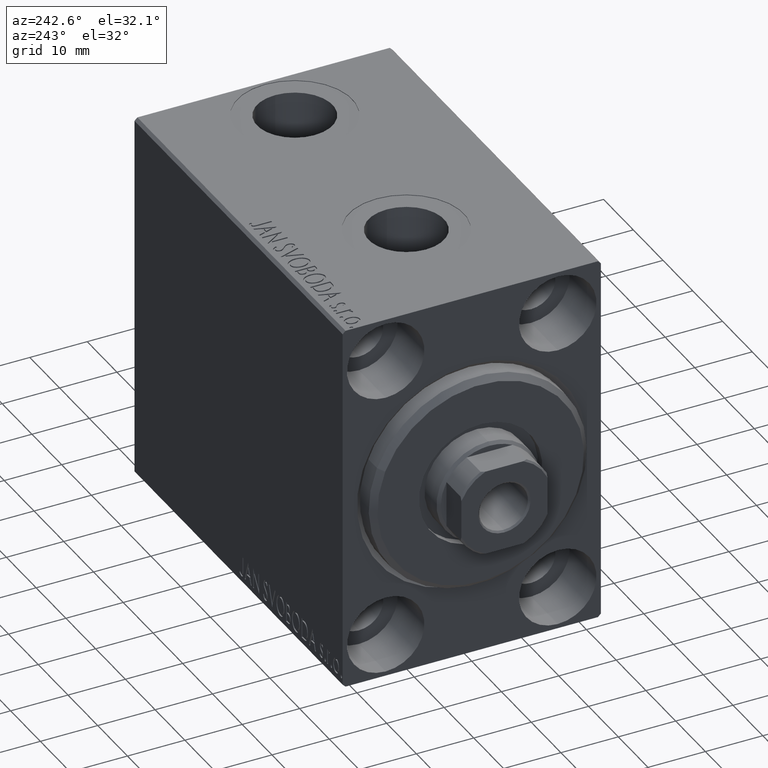
[diagram: clean part render]
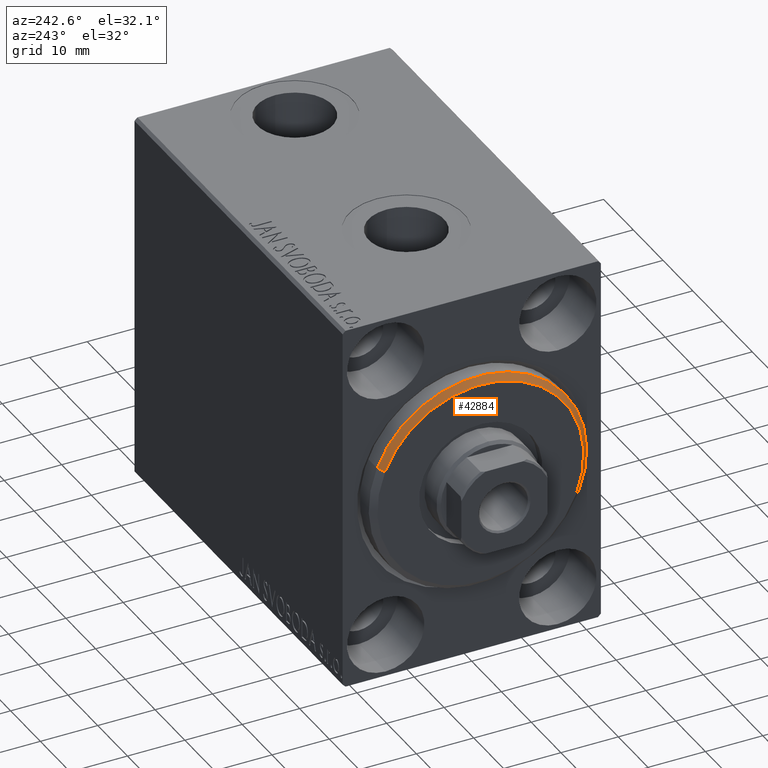
[diagram: same view with one face highlighted and labeled with its STEP entity id]
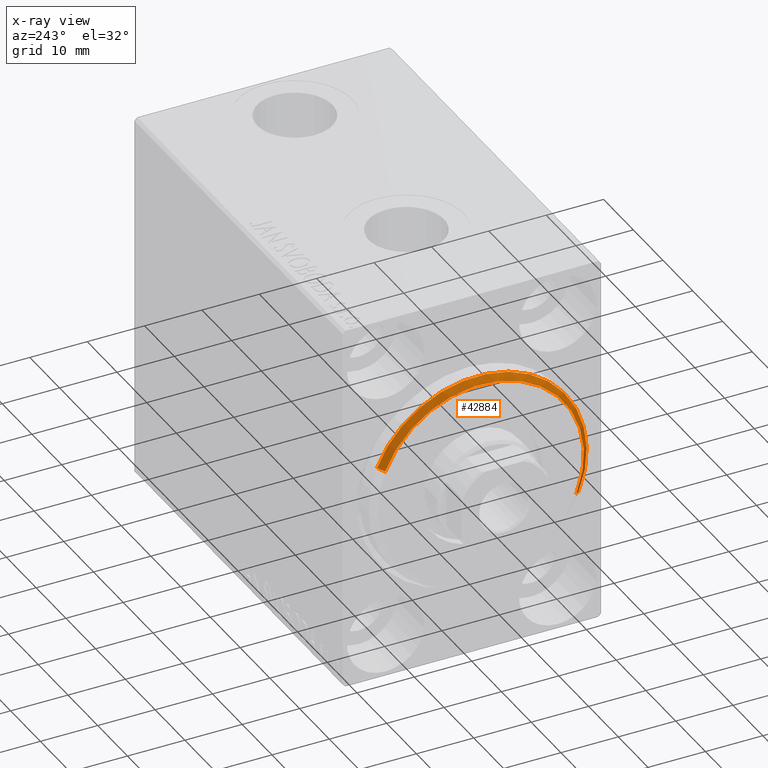
[diagram: x-ray of the same camera — body ghosted, the highlighted face saturated]
A machine part, auxiliary view. The second image highlights one B-rep face of the part: STEP entity #42884.
The next image is the same camera in x-ray: the body ghosted, the highlighted face saturated — about 0% of this face is hidden behind the body in this view.
In plain terms, the highlighted conical surface has half-angle 45 deg.
Its self-contained STEP definition (entity closure, byte-faithful):
#26 = LINE ( 'NONE', #6475, #36581 ) ;
#47 = VERTEX_POINT ( 'NONE', #22206 ) ;
#132 = DIRECTION ( 'NONE',  ( 0.000000000000000000, 0.000000000000000000, 1.000000000000000000 ) ) ;
#365 = VECTOR ( 'NONE', #38413, 1000.000000000000000 ) ;
#2099 = CARTESIAN_POINT ( 'NONE',  ( 1.999999999999992228, 2.326828918379970970E-15, -19.00000000000000000 ) ) ;
#3369 = DIRECTION ( 'NONE',  ( -0.7071067811865487940, 0.000000000000000000, 0.7071067811865463515 ) ) ;
#6475 = CARTESIAN_POINT ( 'NONE',  ( 3.000000000000000000, 0.000000000000000000, 17.99999999999999645 ) ) ;
#6802 = CARTESIAN_POINT ( 'NONE',  ( 3.000000000000000000, 0.000000000000000000, 0.000000000000000000 ) ) ;
#7476 = AXIS2_PLACEMENT_3D ( 'NONE', #6802, #16811, #132 ) ;
#7999 = CARTESIAN_POINT ( 'NONE',  ( 1.999999999999992228, 0.000000000000000000, 0.000000000000000000 ) ) ;
#8451 = CARTESIAN_POINT ( 'NONE',  ( 3.000000000000000000, 0.000000000000000000, 0.000000000000000000 ) ) ;
#10261 = AXIS2_PLACEMENT_3D ( 'NONE', #8451, #21817, #42289 ) ;
#10773 = ORIENTED_EDGE ( 'NONE', *, *, #43397, .T. ) ;
#12991 = EDGE_CURVE ( 'NONE', #40604, #47, #23053, .T. ) ;
#14906 = EDGE_CURVE ( 'NONE', #47, #31997, #41975, .T. ) ;
#15828 = ORIENTED_EDGE ( 'NONE', *, *, #43457, .F. ) ;
#16811 = DIRECTION ( 'NONE',  ( -1.000000000000000000, 0.000000000000000000, 0.000000000000000000 ) ) ;
#21715 = AXIS2_PLACEMENT_3D ( 'NONE', #7999, #30954, #24269 ) ;
#21817 = DIRECTION ( 'NONE',  ( 1.000000000000000000, -0.000000000000000000, 0.000000000000000000 ) ) ;
#21972 = ORIENTED_EDGE ( 'NONE', *, *, #14906, .F. ) ;
#22206 = CARTESIAN_POINT ( 'NONE',  ( 3.000000000000000000, 2.265596578422603002E-15, -17.99999999999999645 ) ) ;
#23053 = CIRCLE ( 'NONE', #10261, 17.99999999999999645 ) ;
#24269 = DIRECTION ( 'NONE',  ( 0.000000000000000000, 0.000000000000000000, -1.000000000000000000 ) ) ;
#24845 = CARTESIAN_POINT ( 'NONE',  ( 3.000000000000000000, 2.204364238465235033E-15, -17.99999999999999645 ) ) ;
#27156 = VERTEX_POINT ( 'NONE', #39202 ) ;
#27394 = CARTESIAN_POINT ( 'NONE',  ( 3.000000000000000000, 0.000000000000000000, 17.99999999999999645 ) ) ;
#30954 = DIRECTION ( 'NONE',  ( -1.000000000000000000, 0.000000000000000000, 0.000000000000000000 ) ) ;
#31671 = CIRCLE ( 'NONE', #21715, 19.00000000000000000 ) ;
#31997 = VERTEX_POINT ( 'NONE', #2099 ) ;
#36581 = VECTOR ( 'NONE', #3369, 1000.000000000000000 ) ;
#37037 = FACE_OUTER_BOUND ( 'NONE', #40596, .T. ) ;
#38413 = DIRECTION ( 'NONE',  ( -0.7071067811865487940, 8.659560562354918067E-17, -0.7071067811865463515 ) ) ;
#39202 = CARTESIAN_POINT ( 'NONE',  ( 1.999999999999992228, 0.000000000000000000, 19.00000000000000000 ) ) ;
#39920 = ORIENTED_EDGE ( 'NONE', *, *, #12991, .F. ) ;
#40150 = CONICAL_SURFACE ( 'NONE', #7476, 17.99999999999999645, 0.7853981633974466137 ) ;
#40596 = EDGE_LOOP ( 'NONE', ( #21972, #39920, #10773, #15828 ) ) ;
#40604 = VERTEX_POINT ( 'NONE', #27394 ) ;
#41975 = LINE ( 'NONE', #24845, #365 ) ;
#42289 = DIRECTION ( 'NONE',  ( 0.000000000000000000, 0.000000000000000000, -1.000000000000000000 ) ) ;
#42884 = ADVANCED_FACE ( 'NONE', ( #37037 ), #40150, .T. ) ;
#43397 = EDGE_CURVE ( 'NONE', #40604, #27156, #26, .T. ) ;
#43457 = EDGE_CURVE ( 'NONE', #31997, #27156, #31671, .T. ) ;